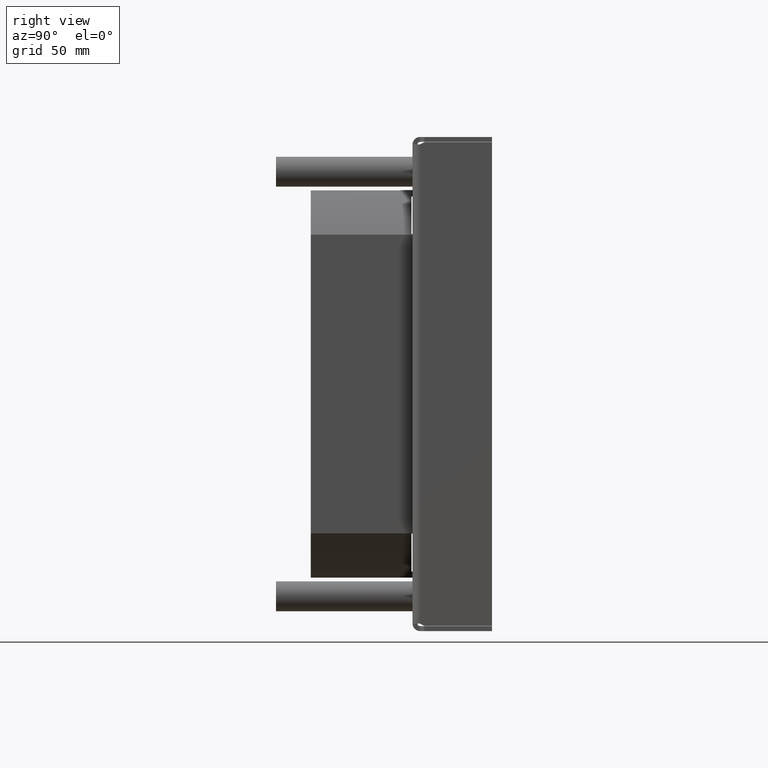
[diagram: clean part render]
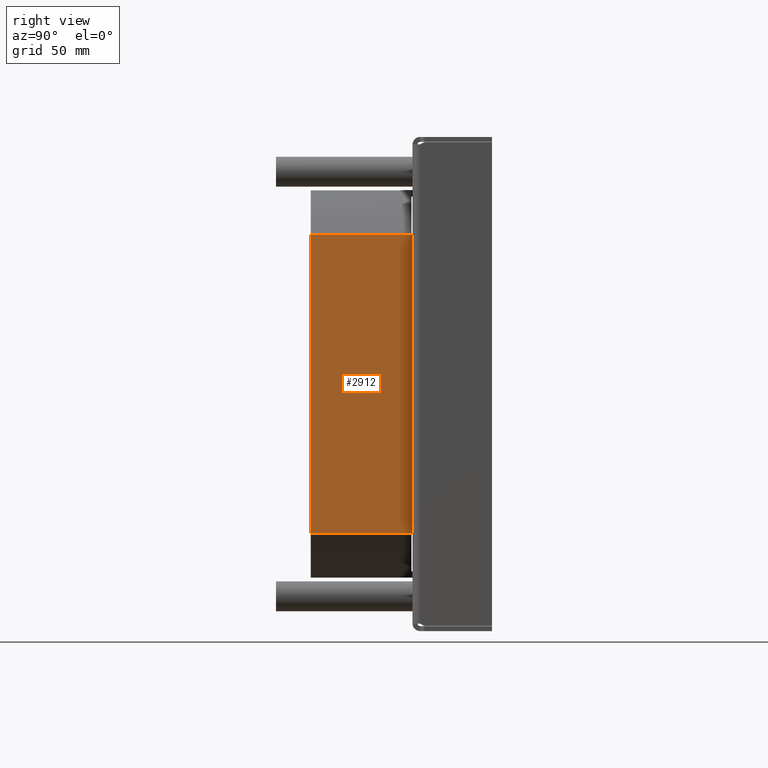
[diagram: same view with one face highlighted and labeled with its STEP entity id]
A machine part, right view. The second image highlights one B-rep face of the part: STEP entity #2912.
In plain terms, the highlighted planar face has unit normal (1, 0, 0).
Its self-contained STEP definition (entity closure, byte-faithful):
#2333=DIRECTION('',(0.E0,-1.E0,0.E0));
#2334=VECTOR('',#2333,4.05E1);
#2335=CARTESIAN_POINT('',(6.013942134740E1,-5.E-1,8.85E1));
#2336=LINE('',#2335,#2334);
#2378=DIRECTION('',(-1.E0,0.E0,0.E0));
#2379=VECTOR('',#2378,1.202788426948E2);
#2380=CARTESIAN_POINT('',(6.013942134740E1,-4.1E1,8.85E1));
#2381=LINE('',#2380,#2379);
#2382=DIRECTION('',(2.842170943040E-14,1.E0,-2.842170943040E-14));
#2383=VECTOR('',#2382,5.E-1);
#2384=CARTESIAN_POINT('',(-6.013942134740E1,-5.E-1,8.85E1));
#2385=LINE('',#2384,#2383);
#2386=DIRECTION('',(1.E0,0.E0,0.E0));
#2387=VECTOR('',#2386,1.202788426948E2);
#2388=CARTESIAN_POINT('',(-6.013942134740E1,0.E0,8.85E1));
#2389=LINE('',#2388,#2387);
#2390=DIRECTION('',(-1.421085471520E-14,1.E0,0.E0));
#2391=VECTOR('',#2390,5.E-1);
#2392=CARTESIAN_POINT('',(6.013942134740E1,-5.E-1,8.85E1));
#2393=LINE('',#2392,#2391);
#2399=DIRECTION('',(0.E0,-1.E0,0.E0));
#2400=VECTOR('',#2399,4.05E1);
#2401=CARTESIAN_POINT('',(-6.013942134740E1,-5.E-1,8.85E1));
#2402=LINE('',#2401,#2400);
#2494=CARTESIAN_POINT('',(6.013942134740E1,-4.1E1,8.85E1));
#2496=VERTEX_POINT('',#2494);
#2502=CARTESIAN_POINT('',(-6.013942134740E1,-4.1E1,8.85E1));
#2504=VERTEX_POINT('',#2502);
#2538=CARTESIAN_POINT('',(-6.013942134740E1,-5.E-1,8.85E1));
#2540=VERTEX_POINT('',#2538);
#2547=CARTESIAN_POINT('',(-6.013942134740E1,0.E0,8.85E1));
#2549=VERTEX_POINT('',#2547);
#2554=CARTESIAN_POINT('',(6.013942134740E1,-5.E-1,8.85E1));
#2556=VERTEX_POINT('',#2554);
#2563=CARTESIAN_POINT('',(6.013942134740E1,0.E0,8.85E1));
#2565=VERTEX_POINT('',#2563);
#2897=CARTESIAN_POINT('',(-1.083812417245E-14,0.E0,8.85E1));
#2898=DIRECTION('',(0.E0,0.E0,1.E0));
#2899=DIRECTION('',(1.E0,0.E0,0.E0));
#2900=AXIS2_PLACEMENT_3D('',#2897,#2898,#2899);
#2901=PLANE('',#2900);
#2902=ORIENTED_EDGE('',*,*,#2670,.T.);
#2904=ORIENTED_EDGE('',*,*,#2903,.F.);
#2905=ORIENTED_EDGE('',*,*,#2889,.T.);
#2906=ORIENTED_EDGE('',*,*,#2623,.T.);
#2908=ORIENTED_EDGE('',*,*,#2907,.F.);
#2909=ORIENTED_EDGE('',*,*,#2833,.T.);
#2910=EDGE_LOOP('',(#2902,#2904,#2905,#2906,#2908,#2909));
#2911=FACE_OUTER_BOUND('',#2910,.F.);
#2623=EDGE_CURVE('',#2549,#2565,#2389,.T.);
#2670=EDGE_CURVE('',#2496,#2504,#2381,.T.);
#2833=EDGE_CURVE('',#2556,#2496,#2336,.T.);
#2889=EDGE_CURVE('',#2540,#2549,#2385,.T.);
#2903=EDGE_CURVE('',#2540,#2504,#2402,.T.);
#2907=EDGE_CURVE('',#2556,#2565,#2393,.T.);
#2912=ADVANCED_FACE('',(#2911),#2901,.T.);